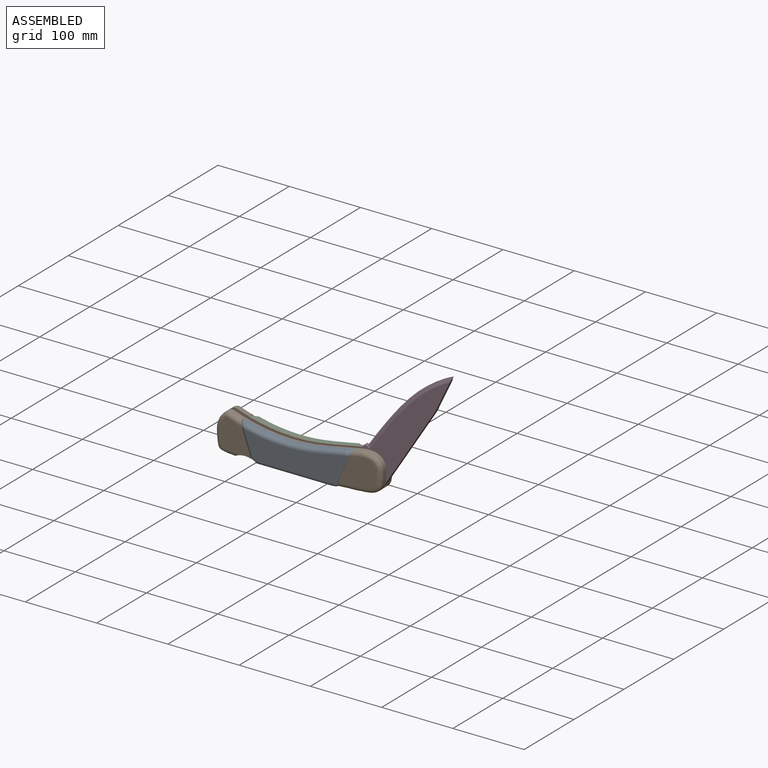
[diagram: assembled view]
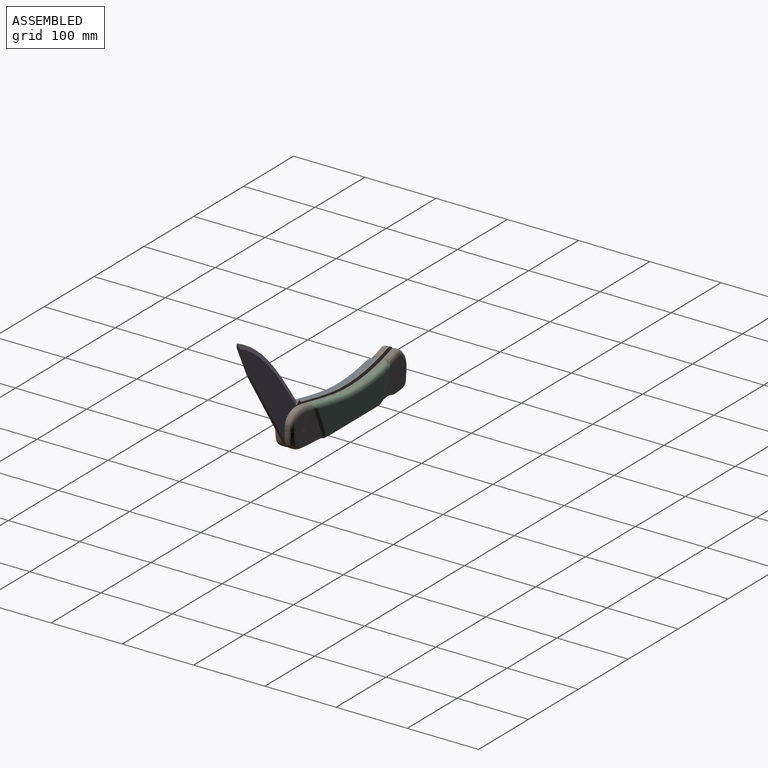
[diagram: assembled view, second angle]
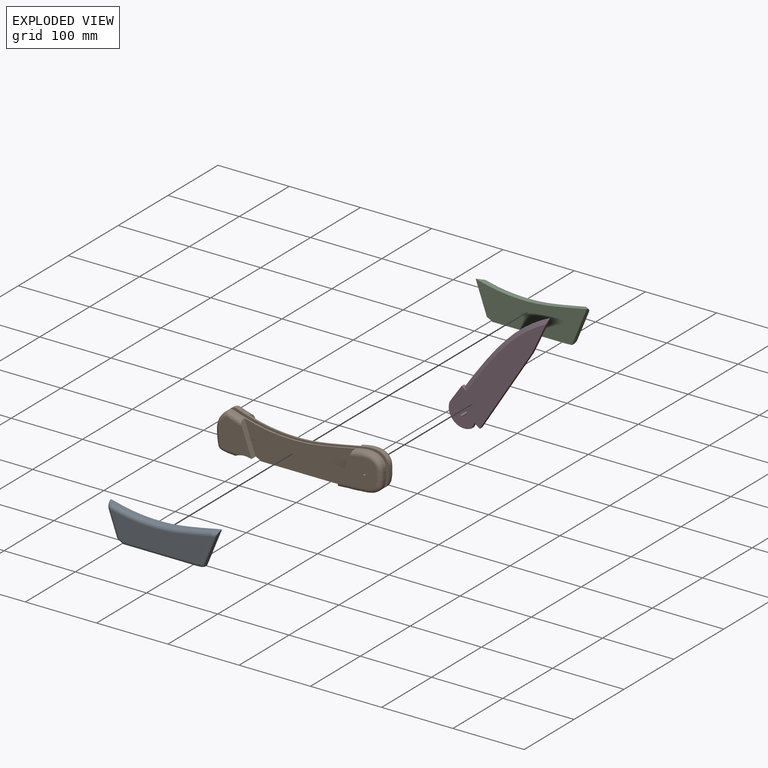
[diagram: exploded view]
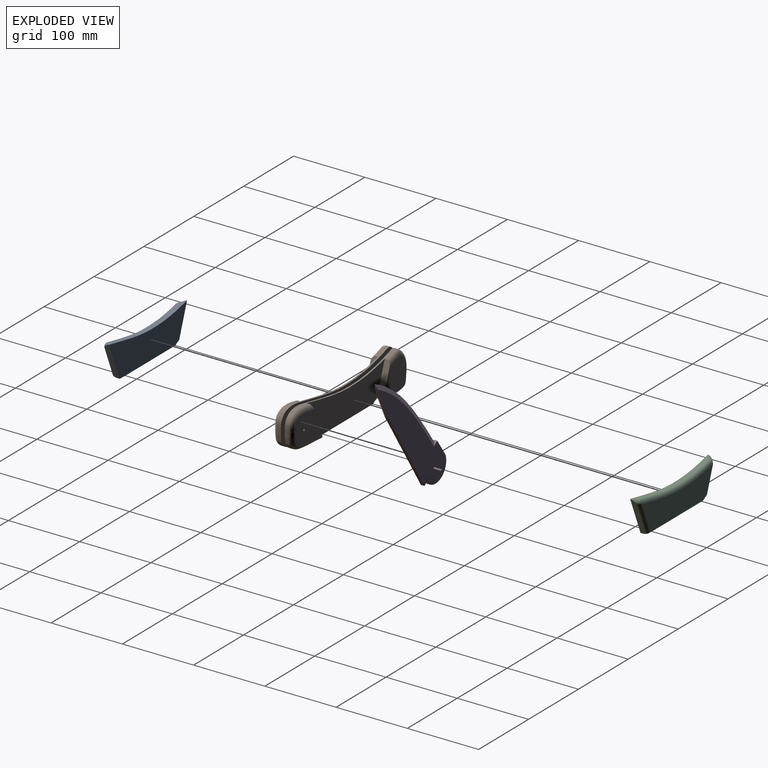
[diagram: exploded view, second angle]
ASSEMBLY  parts=4 mates=3
PART A: 24 faces, bbox 170.8x25.5x54.8 mm
  f0: cylinder r=26.75mm len=7.43mm, axis (0,1,0), area 50.7mm2, adj f1,f5,f7,f21,f23
  f1: plane 103.43x6.1mm, normal (0,0,-1), area 630.5mm2, adj f0,f2,f7,f19
  f2: extruded ~8.62x6.1mm, area 49.2mm2, adj f1,f3,f7,f12,f17
  f3: plane 52.4x22.18mm, normal (0.93,0,-0.38), area 452.1mm2, adj f2,f7,f8,f10,f12
  f4: extruded ~152.78x12.33mm, area 899.2mm2, adj f7,f10,f15,f16
  f5: plane 45.64x17.09mm, normal (-0.94,0,-0.33), area 382.2mm2, adj f0,f7,f9,f15,f23
  f6: plane 140.87x39.77mm, normal (0,-1,0), area 3966.4mm2, adj f11,f16,f17,f19,f20,f21
  f7: plane 156.02x52.11mm, normal (0,1,0), area 5742.4mm2, adj f0,f1,f2,f3,f4,f5,f10,f15
  f8: plane 39.7x17.34mm, normal (0.65,-0.71,-0.27), area 63.6mm2, adj f3,f10,f11,f12
  f9: plane 33.38x12.95mm, normal (-0.67,-0.71,-0.24), area 52mm2, adj f5,f15,f20,f23
  f10: bspline ~26.28x24.12mm, area 66.8mm2, adj f3,f4,f7,f8,f13
  f11: cylinder r=5.08mm len=40.81mm, axis (-0.38,0,-0.93), area 170mm2, adj f6,f8,f13,f14
  f12: bspline ~14.54x14mm, area 12.6mm2, adj f2,f3,f8,f14
  f13: sphere r=5.08mm, area 21.3mm2, adj f10,f11,f16
  f14: sphere r=5.08mm, area 16.2mm2, adj f11,f12,f17
  f15: bspline ~19.43x18.57mm, area 67.2mm2, adj f4,f5,f7,f9,f18
  f16: bspline ~151.06x16.83mm, area 1124.3mm2, adj f4,f6,f13,f18
  f17: bspline ~15.61x5.85mm, area 46.4mm2, adj f2,f6,f14,f19
  f18: sphere r=5.08mm, area 21.1mm2, adj f15,f16,f20
  f19: cylinder r=5.08mm len=103.43mm, axis (-1,0,0), area 818.2mm2, adj f1,f6,f17,f21
  f20: cylinder r=5.08mm len=34.28mm, axis (0.33,0,-0.94), area 140mm2, adj f6,f9,f18,f22
  f21: torus R=31.83mm, axis (0,-1,0), area 52.3mm2, adj f0,f6,f19,f22
  f22: sphere r=5.08mm, area 5.7mm2, adj f20,f21,f23
  f23: bspline ~5.03x4.16mm, area 7mm2, adj f0,f5,f9,f22
PART B: 57 faces, bbox 235.2x28.5x55.8 mm
  f0: plane 53.99x41.84mm, normal (0,-1,0), area 1703.6mm2, adj f4,f20,f22,f23,f24,f25,f26
  f1: extruded ~70.87x23.94mm, area 1029.5mm2, adj f8,f9,f13,f18,f20,f21,f22,f38
  f2: extruded ~190.13x15.15mm, area 539.5mm2, adj f5,f11,f18,f19,f20,f21,f26,f32
  f3: extruded ~22.09x16.27mm, area 400.3mm2, adj f5,f6,f17,f18,f30,f37,f42,f54
  f4: cylinder r=1.54mm len=10.92mm, axis (0,1,0), area 105.9mm2, adj f0,f18
  f5: plane 5.08x0.55mm, normal (0,0,1), area 2.8mm2, adj f2,f3,f18,f31
  f6: plane 15.24x8.38mm, normal (-1,0,0), area 127.8mm2, adj f3,f7,f29,f53
  f7: extruded ~25.68x23.61mm, area 645.5mm2, adj f6,f28,f33,f52
  f8: plane 103.43x9.65mm, normal (0,0,-1), area 998.3mm2, adj f1,f21,f33,f45
  f9: plane 6.79x5.08mm, normal (1,0,0), area 34.5mm2, adj f1,f10,f18,f23
  f10: extruded ~23.35x19.97mm, area 177.8mm2, adj f9,f11,f18,f24
  f11: plane 5.9x5.08mm, normal (0,0,1), area 30mm2, adj f2,f10,f18,f25
  f12: plane 44.63x42.4mm, normal (0,-1,0), area 1416.8mm2, adj f19,f27,f28,f29,f30,f31,f32
  f13: plane 8.72x5.08mm, normal (1,0,0), area 44.3mm2, adj f1,f14,f18,f42
  f14: plane 56.35x5.78mm, normal (-0.1,0,0.99), area 287.8mm2, adj f13,f15,f18,f42
  f15: plane 89.26x5.08mm, normal (0,0,1), area 453.5mm2, adj f14,f16,f18,f42
  f16: plane 47.51x21.45mm, normal (0.41,0,0.91), area 264.8mm2, adj f15,f17,f18,f42
  f17: plane 23.13x5.42mm, normal (0.97,0,0.23), area 120.7mm2, adj f3,f16,f18,f42
  f18: plane 223.7x51.66mm, normal (0,1,0), area 8072.3mm2, adj f1,f2,f3,f4,f5,f9,f10,f11
  f19: plane 45.93x17.29mm, normal (0.94,0,0.33), area 397.5mm2, adj f2,f12,f21,f27,f32,f33
  f20: plane 52.71x22.43mm, normal (-0.93,0,0.38), area 460.3mm2, adj f0,f1,f2,f21,f22,f26
  f21: plane 157.94x52.52mm, normal (0,-1,0), area 5742.5mm2, adj f1,f2,f8,f19,f20,f33
  f22: bspline ~67.45x25.05mm, area 642.7mm2, adj f0,f1,f20,f23
  f23: cylinder r=5.84mm len=6.79mm, axis (0,0,-1), area 60.2mm2, adj f0,f9,f22,f24
  f24: bspline ~33.75x20.83mm, area 291mm2, adj f0,f10,f23,f25
  f25: cylinder r=5.84mm len=5.9mm, axis (1,0,0), area 52.4mm2, adj f0,f11,f24,f26
  f26: bspline ~28.05x10.59mm, area 158.6mm2, adj f0,f2,f20,f25
  f27: cylinder r=5.84mm len=25.42mm, axis (-1,0,0), area 41.5mm2, adj f12,f19,f28,f33
  f28: bspline ~33x28.14mm, area 352.2mm2, adj f7,f12,f27,f29
  f29: cylinder r=5.84mm len=8.38mm, axis (0,0,1), area 72.9mm2, adj f6,f12,f28,f30
  f30: bspline ~23.3x16.57mm, area 236.3mm2, adj f3,f12,f29,f31
  f31: cylinder r=5.84mm len=5.84mm, axis (1,0,0), area 3.6mm2, adj f5,f12,f30,f32
  f32: bspline ~26.35x13.29mm, area 191.1mm2, adj f2,f12,f19,f31
  f33: cylinder r=26.75mm len=32.85mm, axis (0,1,0), area 641mm2, adj f7,f8,f19,f21,f27,f43,f45,f51
  f34: plane 53.99x41.84mm, normal (0,1,0), area 1703.6mm2, adj f36,f44,f46,f47,f48,f49,f50
  f35: extruded ~190.13x15.15mm, area 539.5mm2, adj f37,f40,f42,f43,f44,f45,f50,f56
  f36: cylinder r=1.54mm len=10.92mm, axis (0,-1,0), area 105.9mm2, adj f34,f42
  f37: plane 5.08x0.55mm, normal (0,0,1), area 2.8mm2, adj f3,f35,f42,f55
  f38: plane 6.79x5.08mm, normal (1,0,0), area 34.5mm2, adj f1,f39,f42,f47
  f39: extruded ~23.35x19.97mm, area 177.8mm2, adj f38,f40,f42,f48
  f40: plane 5.9x5.08mm, normal (0,0,1), area 30mm2, adj f35,f39,f42,f49
  f41: plane 44.63x42.4mm, normal (0,1,0), area 1416.8mm2, adj f43,f51,f52,f53,f54,f55,f56
  f42: plane 223.7x51.66mm, normal (0,-1,0), area 8072.3mm2, adj f1,f3,f13,f14,f15,f16,f17,f35
  f43: plane 45.93x17.29mm, normal (0.94,0,0.33), area 397.5mm2, adj f33,f35,f41,f45,f51,f56
  f44: plane 52.71x22.43mm, normal (-0.93,0,0.38), area 460.3mm2, adj f1,f34,f35,f45,f46,f50
  f45: plane 157.94x52.52mm, normal (0,1,0), area 5742.5mm2, adj f1,f8,f33,f35,f43,f44
  f46: bspline ~67.45x25.05mm, area 642.8mm2, adj f1,f34,f44,f47
  f47: cylinder r=5.84mm len=6.79mm, axis (0,0,-1), area 60.2mm2, adj f34,f38,f46,f48
  f48: bspline ~33.75x20.83mm, area 291mm2, adj f34,f39,f47,f49
  f49: cylinder r=5.84mm len=5.9mm, axis (1,0,0), area 52.4mm2, adj f34,f40,f48,f50
  f50: bspline ~28.05x10.59mm, area 158.6mm2, adj f34,f35,f44,f49
  f51: cylinder r=5.84mm len=25.42mm, axis (-1,0,0), area 41.5mm2, adj f33,f41,f43,f52
  f52: bspline ~33x28.14mm, area 352.6mm2, adj f7,f41,f51,f53
  f53: cylinder r=5.84mm len=8.38mm, axis (0,0,1), area 72.9mm2, adj f6,f41,f52,f54
  f54: bspline ~23.3x16.57mm, area 236.3mm2, adj f3,f41,f53,f55
  f55: cylinder r=5.84mm len=5.84mm, axis (1,0,0), area 3.6mm2, adj f37,f41,f54,f56
  f56: bspline ~26.35x13.29mm, area 191.1mm2, adj f35,f41,f43,f55
PART C: 24 faces, bbox 170.8x25.5x54.8 mm
  f0: cylinder r=26.75mm len=7.43mm, axis (0,-1,0), area 50.7mm2, adj f1,f5,f7,f21,f23
  f1: plane 103.43x6.1mm, normal (0,0,-1), area 630.5mm2, adj f0,f2,f7,f19
  f2: extruded ~8.62x6.1mm, area 49.2mm2, adj f1,f3,f7,f12,f17
  f3: plane 52.4x22.18mm, normal (0.93,0,-0.38), area 452.1mm2, adj f2,f7,f8,f10,f12
  f4: extruded ~152.78x12.33mm, area 899.2mm2, adj f7,f10,f15,f16
  f5: plane 45.64x17.09mm, normal (-0.94,0,-0.33), area 382.2mm2, adj f0,f7,f9,f15,f23
  f6: plane 140.87x39.77mm, normal (0,1,0), area 3966.4mm2, adj f11,f16,f17,f19,f20,f21
  f7: plane 156.02x52.11mm, normal (0,-1,0), area 5742.4mm2, adj f0,f1,f2,f3,f4,f5,f10,f15
  f8: plane 39.7x17.34mm, normal (0.65,0.71,-0.27), area 63.6mm2, adj f3,f10,f11,f12
  f9: plane 33.38x12.95mm, normal (-0.67,0.71,-0.24), area 52mm2, adj f5,f15,f20,f23
  f10: bspline ~26.28x24.12mm, area 66.8mm2, adj f3,f4,f7,f8,f13
  f11: cylinder r=5.08mm len=40.81mm, axis (-0.38,0,-0.93), area 170mm2, adj f6,f8,f13,f14
  f12: bspline ~14.54x14mm, area 12.6mm2, adj f2,f3,f8,f14
  f13: sphere r=5.08mm, area 21.3mm2, adj f10,f11,f16
  f14: sphere r=5.08mm, area 16.2mm2, adj f11,f12,f17
  f15: bspline ~19.43x18.57mm, area 67.2mm2, adj f4,f5,f7,f9,f18
  f16: bspline ~151.06x16.83mm, area 1124.3mm2, adj f4,f6,f13,f18
  f17: bspline ~15.61x5.85mm, area 46.4mm2, adj f2,f6,f14,f19
  f18: sphere r=5.08mm, area 21.1mm2, adj f15,f16,f20
  f19: cylinder r=5.08mm len=103.43mm, axis (-1,0,0), area 818.2mm2, adj f1,f6,f17,f21
  f20: cylinder r=5.08mm len=34.28mm, axis (0.33,0,-0.94), area 140mm2, adj f6,f9,f18,f22
  f21: torus R=31.83mm, axis (0,1,0), area 52.3mm2, adj f0,f6,f19,f22
  f22: sphere r=5.08mm, area 5.7mm2, adj f20,f21,f23
  f23: bspline ~5.03x4.16mm, area 7mm2, adj f0,f5,f9,f22
PART D: 15 faces, bbox 214.2x27.7x48.9 mm
  f0: cylinder r=21.52mm len=40.16mm, axis (0,1,0), area 266mm2, adj f1,f6,f7,f11
  f1: plane 8.84x5.08mm, normal (0.1,0,-1), area 45.1mm2, adj f0,f2,f7,f11
  f2: plane 8.74x5.08mm, normal (-1,0,0), area 44.4mm2, adj f1,f3,f7,f11
  f3: plane 134.96x5.08mm, normal (0.04,0,-1), area 686.1mm2, adj f2,f4,f7,f11
  f4: plane 56.25x9.16mm, normal (0.16,0,-0.99), area 267.1mm2, adj f3,f7,f10,f11,f14
  f5: plane 8.29x5.08mm, normal (1,0,0), area 28.3mm2, adj f6,f7,f10,f11,f14
  f6: plane 29.61x5.08mm, normal (0,0,1), area 150.4mm2, adj f0,f5,f7,f11
  f7: plane 204.4x48.86mm, normal (0,-1,0), area 6355.4mm2, adj f0,f1,f2,f3,f4,f5,f6,f8
  f8: cylinder r=1.36mm len=10.92mm, axis (0,1,0), area 93.3mm2, adj f7,f9
  f9: plane 2.72x2.72mm, normal (0,-1,0), area 5.8mm2, adj f8
  f10: bspline ~176.17x37.35mm, area 1001.8mm2, adj f4,f5,f7,f14
  f11: plane 204.4x48.86mm, normal (0,1,0), area 6355.4mm2, adj f0,f1,f2,f3,f4,f5,f6,f12
  f12: cylinder r=1.36mm len=10.92mm, axis (0,-1,0), area 93.3mm2, adj f11,f13
  f13: plane 2.72x2.72mm, normal (0,1,0), area 5.8mm2, adj f12
  f14: bspline ~176.17x37.35mm, area 1001.8mm2, adj f4,f5,f10,f11
PLACE A t=(-40.21,63.68,-40.46)mm
PLACE B t=(-40.21,63.68,-40.46)mm fixed
PLACE C t=(-40.21,63.68,-40.46)mm
PLACE D rot(axis=(0,-1,0),55.4deg) t=(1.07,63.68,-124.24)mm
MATE fastened A.f7 <-> B.f21  axis (0,1,0) through (-35.31,58.85,-47.6)mm
MATE revolute D.f8 <-> B.f4  axis (0,-1,0) through (60.22,50.22,-43.11)mm
MATE fastened B.f45 <-> C.f7  axis (0,1,0) through (-35.31,68.5,-47.6)mm
